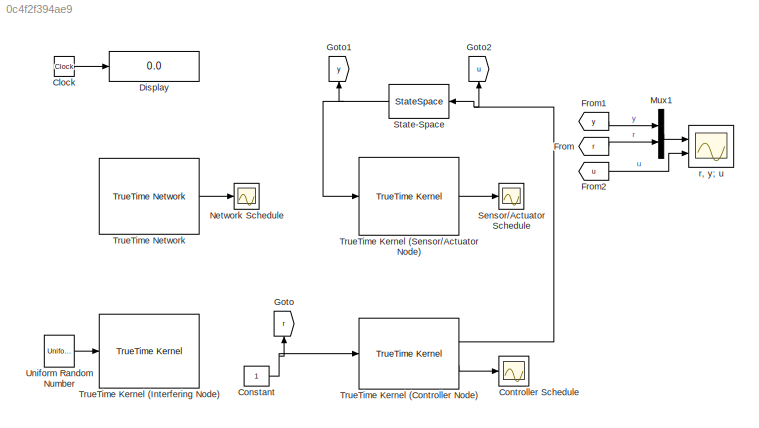
MODEL slx_0c4f2f394ae9
KIND model
CONFIG AbsTol = auto
CONFIG EnableMultiTasking = on
CONFIG FixedStep = auto
CONFIG MaxStep = auto
CONFIG MinStep = auto
CONFIG RelTol = 1e-3
CONFIG SampleTimeConstraint = Unconstrained
CONFIG Solver = ode45
CONFIG SolverName = ode45
CONFIG StartTime = 0.0
CONFIG StopTime = 2
BLOCK [Clock] Clock
BLOCK [Constant] Constant
BLOCK [Scope] Controller Schedule
  Floating = off
  NumInputPorts = 1
  Ports = [1]
  ScopeSpecificationString = Simulink.scopes.TimeScopeBlockCfg('CurrentConfiguration', extmgr.ConfigurationSet(extmgr.Configuration('Core','General UI',true,'FigureColor',[0.156862745098039 0.156862745098039 0.156862745098039]),extmgr.Configuration('Core','Source UI',true),extmgr.Configuration('Sources','WiredSimulink',true,'DataLoggingVariableName','nschedule','DataLoggingSaveFormat','StructureWithTime','DataLoggingDecimatio...<+2804ch>
BLOCK [Display] Display
  Decimation = 1
  Ports = [1]
BLOCK [From] From
  CloseFcn = tagdialog Close
  GotoTag = r
  TagVisibility = global
BLOCK [From] From1
  CloseFcn = tagdialog Close
  GotoTag = y
  TagVisibility = global
BLOCK [From] From2
  CloseFcn = tagdialog Close
  GotoTag = u
  TagVisibility = global
BLOCK [Goto] Goto
  GotoTag = r
  TagVisibility = global
BLOCK [Goto] Goto1
  GotoTag = y
  TagVisibility = global
BLOCK [Goto] Goto2
  GotoTag = u
  TagVisibility = global
BLOCK [Mux] Mux1
  DisplayOption = bar
  Inputs = 2
  Ports = [2, 1]
BLOCK [Scope] Network Schedule
  Floating = off
  NumInputPorts = 1
  Ports = [1]
  ScopeSpecificationString = Simulink.scopes.TimeScopeBlockCfg('CurrentConfiguration', extmgr.ConfigurationSet(extmgr.Configuration('Core','General UI',true,'FigureColor',[0.156862745098039 0.156862745098039 0.156862745098039]),extmgr.Configuration('Core','Source UI',true),extmgr.Configuration('Sources','WiredSimulink',true,'DataLoggingVariableName','nschedule1','DataLoggingSaveFormat','StructureWithTime','DataLoggingDecimati...<+2873ch>
BLOCK [Scope] Sensor//Actuator Schedule
  Floating = off
  NumInputPorts = 1
  Ports = [1]
  ScopeSpecificationString = Simulink.scopes.TimeScopeBlockCfg('CurrentConfiguration', extmgr.ConfigurationSet(extmgr.Configuration('Core','General UI',true,'FigureColor',[0.156862745098039 0.156862745098039 0.156862745098039]),extmgr.Configuration('Core','Source UI',true),extmgr.Configuration('Sources','WiredSimulink',true,'DataLoggingVariableName','nschedule2','DataLoggingSaveFormat','StructureWithTime','DataLoggingDecimati...<+2858ch>
BLOCK [StateSpace] State-Space
  A = A
  B = B
  C = C
  D = D
  InitialCondition = 0
  Ports = [1, 1]
BLOCK [Reference] TrueTime Kernel (Controller Node)  REF=truetime/TrueTime Kernel  (lib defined in slx_0362a698a4ec)
  Ports = [1, 2]
  SourceBlock = truetime/TrueTime Kernel
BLOCK [Reference] TrueTime Kernel (Interfering Node)  REF=truetime/TrueTime Kernel  (lib defined in slx_0362a698a4ec)
  Ports = [1]
  SourceBlock = truetime/TrueTime Kernel
BLOCK [Reference] TrueTime Kernel (Sensor//Actuator Node)  REF=truetime/TrueTime Kernel  (lib defined in slx_0362a698a4ec)
  Ports = [1, 1]
  SourceBlock = truetime/TrueTime Kernel
BLOCK [Reference] TrueTime Network  REF=truetime/TrueTime Network  (lib defined in slx_0362a698a4ec)
  Ports = [0, 1]
  SourceBlock = truetime/TrueTime Network
  SourceType = Real-Time Network
BLOCK [UniformRandomNumber] Uniform Random Number
  Minimum = 0
  SampleTime = 0.001
BLOCK [Scope] r, y; u
  Floating = off
  NumInputPorts = 2
  Ports = [2]
  ScopeSpecificationString = Simulink.scopes.TimeScopeBlockCfg('CurrentConfiguration', extmgr.ConfigurationSet(extmgr.Configuration('Core','General UI',true,'FigureColor',[0.156862745098039 0.156862745098039 0.156862745098039]),extmgr.Configuration('Core','Source UI',true),extmgr.Configuration('Sources','WiredSimulink',true,'DataLoggingVariableName','y','DataLoggingSaveFormat','StructureWithTime','DataLoggingDecimation','1','...<+4800ch>
LINE Clock:1 -> Display:1
NET Constant:1 -> Goto:1, TrueTime Kernel (Controller Node):1
LINE From1:1 -> Mux1:1
LINE From2:1 -> r, y; u:2
LINE From:1 -> Mux1:2
LINE Mux1:1 -> r, y; u:1
NET State-Space:1 -> Goto1:1, TrueTime Kernel (Sensor//Actuator Node):1
NET TrueTime Kernel (Controller Node):1 -> Goto2:1, State-Space:1
LINE TrueTime Kernel (Controller Node):2 -> Controller Schedule:1
LINE TrueTime Kernel (Sensor//Actuator Node):1 -> Sensor//Actuator Schedule:1
LINE TrueTime Network:1 -> Network Schedule:1
LINE Uniform Random Number:1 -> TrueTime Kernel (Interfering Node):1
note: NET lines group one-source signal fan-out (src -> all destinations, sorted); 1:1 wires keep LINE
